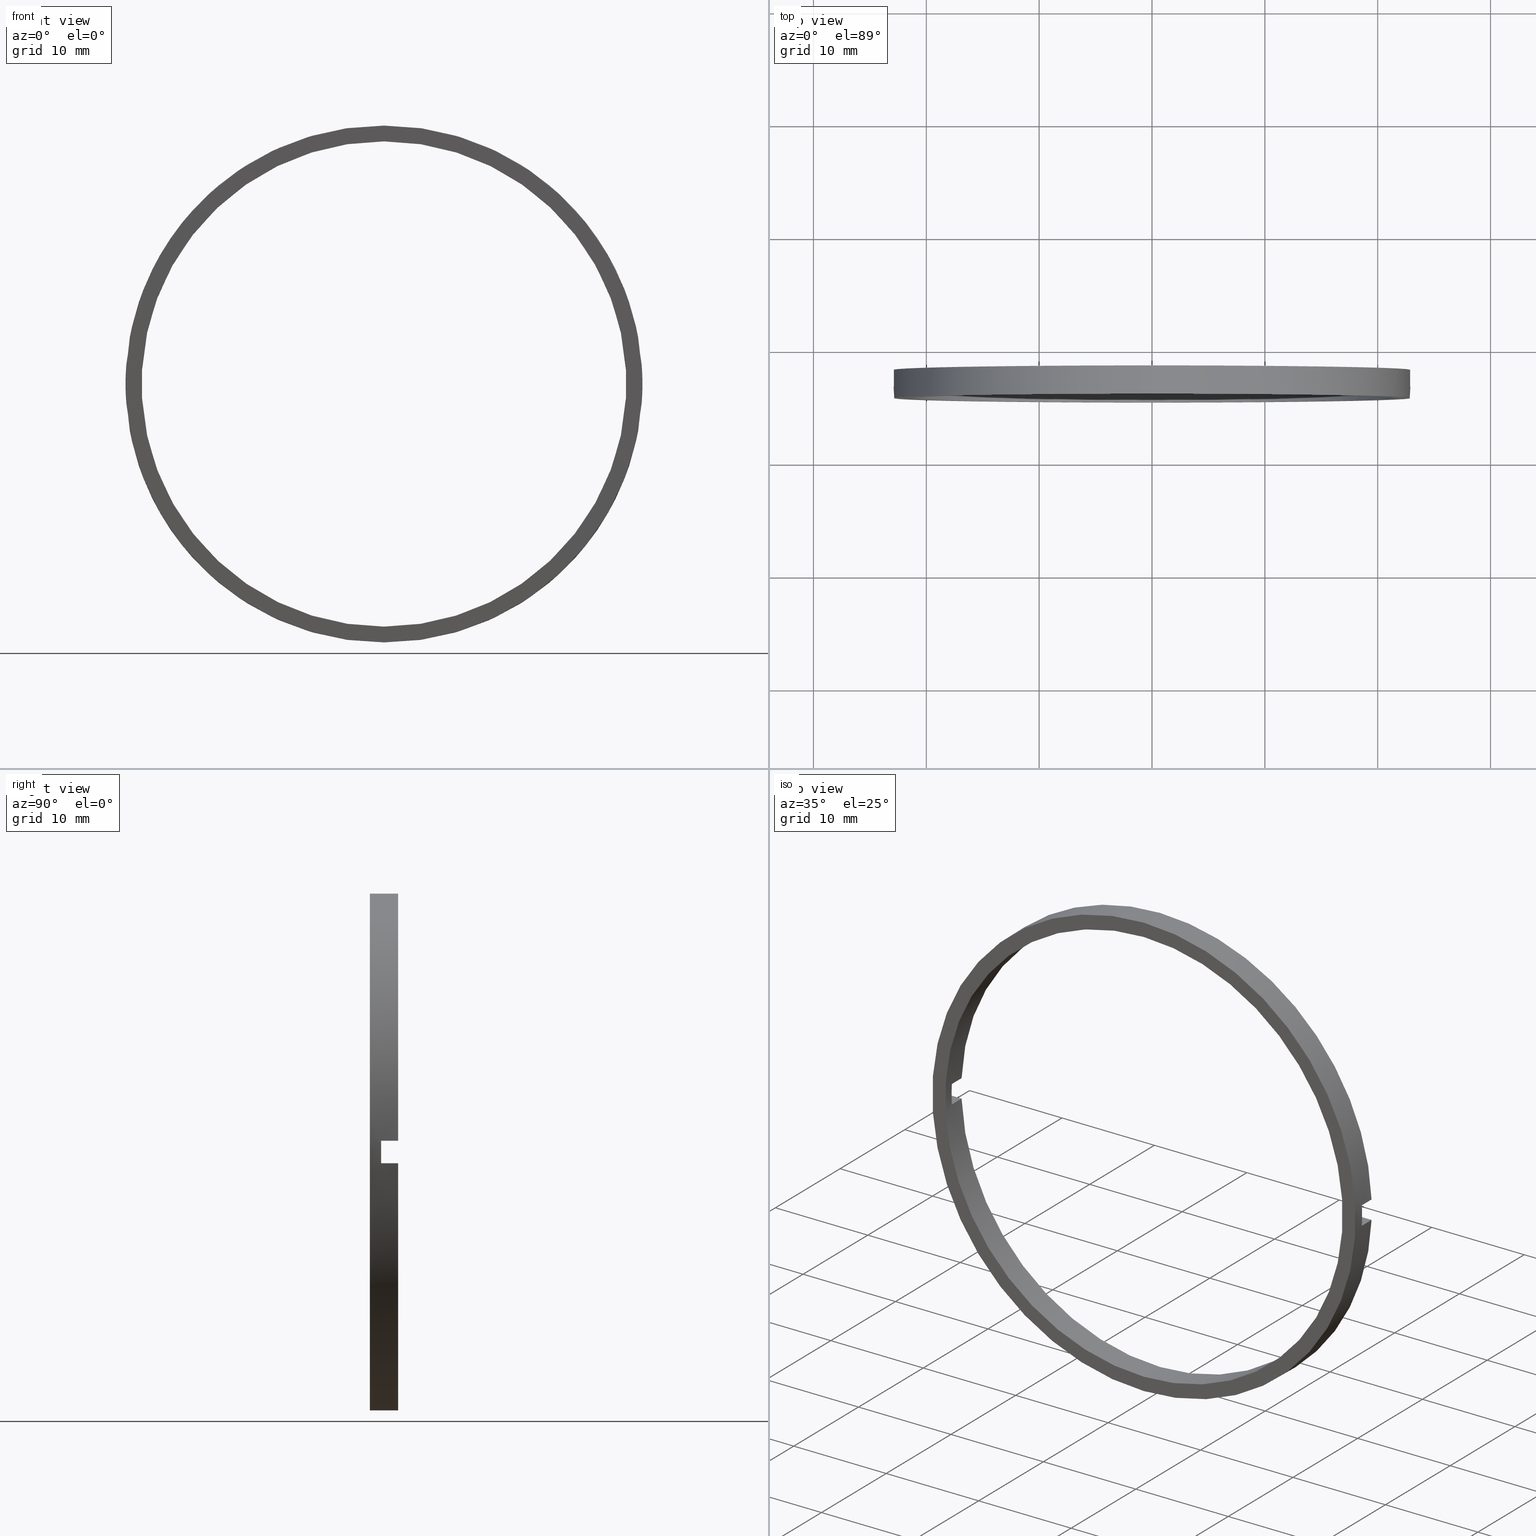
[diagram: canonical four-view strip — front | top / right | iso, engineering-drawing reading convention]
A machine part, canonical four-view strip (front | top / right | iso — engineering-drawing reading convention). The complete STEP part file that produces these views, byte-faithful:
ISO-10303-21;
HEADER;
FILE_DESCRIPTION (( 'STEP AP214' ),
    '1' );
FILE_NAME ('514002.STEP',
    '2019-09-18T02:29:02',
    ( '' ),
    ( '' ),
    'SwSTEP 2.0',
    'SolidWorks 2016',
    '' );
FILE_SCHEMA (( 'AUTOMOTIVE_DESIGN' ));
ENDSEC;

DATA;
#1 = DIRECTION ( 'NONE',  ( 0.0000000000000000000, 0.0000000000000000000, 1.000000000000000000 ) ) ;
#2 = EDGE_LOOP ( 'NONE', ( #66, #15 ) ) ;
#3 = ORIENTED_EDGE ( 'NONE', *, *, #143, .F. ) ;
#4 = EDGE_CURVE ( 'NONE', #167, #287, #423, .T. ) ;
#5 = DIRECTION ( 'NONE',  ( 0.0000000000000000000, 0.0000000000000000000, 1.000000000000000000 ) ) ;
#6 = CARTESIAN_POINT ( 'NONE',  ( -21.47673159491452900, -1.964249787179427100, 0.9999999999999995600 ) ) ;
#7 = CIRCLE ( 'NONE', #455, 21.50000000000000400 ) ;
#8 = CARTESIAN_POINT ( 'NONE',  ( 0.0000000000000000000, -3.464249787179430200, 0.0000000000000000000 ) ) ;
#9 = DIRECTION ( 'NONE',  ( 0.0000000000000000000, 0.0000000000000000000, 1.000000000000000000 ) ) ;
#10 = STYLED_ITEM ( 'NONE', ( #374 ), #333 ) ;
#11 = PLANE ( 'NONE',  #73 ) ;
#12 = CIRCLE ( 'NONE', #125, 22.90000000000000600 ) ;
#13 = EDGE_CURVE ( 'NONE', #28, #345, #375, .T. ) ;
#14 = ORIENTED_EDGE ( 'NONE', *, *, #183, .F. ) ;
#15 = ORIENTED_EDGE ( 'NONE', *, *, #205, .F. ) ;
#16 = CARTESIAN_POINT ( 'NONE',  ( 0.0000000000000000000, -1.964249787179427100, 0.0000000000000000000 ) ) ;
#17 = CARTESIAN_POINT ( 'NONE',  ( 22.87815552005886100, -1.964249787179430000, 1.000000000000000000 ) ) ;
#18 = LINE ( 'NONE', #67, #425 ) ;
#19 = VECTOR ( 'NONE', #210, 1000.000000000000000 ) ;
#20 = PLANE ( 'NONE',  #228 ) ;
#21 = VERTEX_POINT ( 'NONE', #386 ) ;
#22 = AXIS2_PLACEMENT_3D ( 'NONE', #202, #320, #395 ) ;
#23 = DIRECTION ( 'NONE',  ( 1.000000000000000000, 0.0000000000000000000, 0.0000000000000000000 ) ) ;
#24 = CARTESIAN_POINT ( 'NONE',  ( -22.87815552005887600, 56.26084262701361600, 1.000000000000000000 ) ) ;
#25 = DIRECTION ( 'NONE',  ( -0.0000000000000000000, 0.0000000000000000000, 1.000000000000000000 ) ) ;
#26 = VECTOR ( 'NONE', #261, 1000.000000000000000 ) ;
#27 = VERTEX_POINT ( 'NONE', #80 ) ;
#28 = VERTEX_POINT ( 'NONE', #117 ) ;
#29 = DIRECTION ( 'NONE',  ( 1.000000000000000000, 0.0000000000000000000, 0.0000000000000000000 ) ) ;
#30 = FACE_OUTER_BOUND ( 'NONE', #198, .T. ) ;
#31 = DIRECTION ( 'NONE',  ( 0.0000000000000000000, -1.000000000000000000, 0.0000000000000000000 ) ) ;
#32 = ORIENTED_EDGE ( 'NONE', *, *, #36, .T. ) ;
#33 = LINE ( 'NONE', #24, #172 ) ;
#34 = ORIENTED_EDGE ( 'NONE', *, *, #279, .T. ) ;
#35 = DIRECTION ( 'NONE',  ( 0.0000000000000000000, -0.0000000000000000000, -1.000000000000000000 ) ) ;
#36 = EDGE_CURVE ( 'NONE', #286, #49, #292, .T. ) ;
#37 = CARTESIAN_POINT ( 'NONE',  ( 21.50000000000000400, -1.964249787179430000, 0.0000000000000000000 ) ) ;
#38 = PRODUCT_DEFINITION_CONTEXT ( 'detailed design', #314, 'design' ) ;
#39 = CARTESIAN_POINT ( 'NONE',  ( -22.87815552005887200, -3.464249787179428400, 0.9999999999999995600 ) ) ;
#40 = UNCERTAINTY_MEASURE_WITH_UNIT (LENGTH_MEASURE( 1.000000000000000100E-005 ), #126, 'distance_accuracy_value', 'NONE');
#41 = LINE ( 'NONE', #300, #444 ) ;
#42 = CARTESIAN_POINT ( 'NONE',  ( 0.0000000000000000000, -4.464249787179428900, 0.0000000000000000000 ) ) ;
#43 = VECTOR ( 'NONE', #462, 1000.000000000000000 ) ;
#44 = CARTESIAN_POINT ( 'NONE',  ( 0.0000000000000000000, -4.464249787179428900, 0.0000000000000000000 ) ) ;
#45 = EDGE_CURVE ( 'NONE', #72, #199, #84, .T. ) ;
#46 = CARTESIAN_POINT ( 'NONE',  ( -22.87815552005887600, -1.964249787179430000, -1.000000000000000000 ) ) ;
#47 = EDGE_CURVE ( 'NONE', #167, #115, #265, .T. ) ;
#48 = LINE ( 'NONE', #238, #496 ) ;
#49 = VERTEX_POINT ( 'NONE', #351 ) ;
#50 = DIRECTION ( 'NONE',  ( 0.0000000000000000000, 0.0000000000000000000, 1.000000000000000000 ) ) ;
#51 = ORIENTED_EDGE ( 'NONE', *, *, #166, .T. ) ;
#52 = CARTESIAN_POINT ( 'NONE',  ( 21.50000000000000400, -1.964249787179430000, 0.0000000000000000000 ) ) ;
#53 = ADVANCED_FACE ( 'NONE', ( #153, #353 ), #354, .F. ) ;
#54 = AXIS2_PLACEMENT_3D ( 'NONE', #336, #408, #96 ) ;
#55 = CARTESIAN_POINT ( 'NONE',  ( 0.0000000000000000000, 56.26084262701361600, 0.0000000000000000000 ) ) ;
#56 = VECTOR ( 'NONE', #23, 1000.000000000000000 ) ;
#57 = EDGE_CURVE ( 'NONE', #199, #321, #48, .T. ) ;
#58 = ORIENTED_EDGE ( 'NONE', *, *, #13, .F. ) ;
#59 = DIRECTION ( 'NONE',  ( 1.000000000000000000, 0.0000000000000000000, 0.0000000000000000000 ) ) ;
#60 = ADVANCED_FACE ( 'NONE', ( #251 ), #174, .T. ) ;
#61 =( LENGTH_UNIT ( ) NAMED_UNIT ( * ) SI_UNIT ( .MILLI., .METRE. ) );
#62 = LINE ( 'NONE', #483, #299 ) ;
#63 = CARTESIAN_POINT ( 'NONE',  ( -26.85254027261461800, -3.464249787179430200, -1.000000000000000000 ) ) ;
#64 = ORIENTED_EDGE ( 'NONE', *, *, #232, .F. ) ;
#65 = AXIS2_PLACEMENT_3D ( 'NONE', #151, #193, #233 ) ;
#66 = ORIENTED_EDGE ( 'NONE', *, *, #74, .F. ) ;
#67 = CARTESIAN_POINT ( 'NONE',  ( -26.85254027261461800, -3.464249787179430200, -1.000000000000000000 ) ) ;
#68 = UNCERTAINTY_MEASURE_WITH_UNIT (LENGTH_MEASURE( 1.000000000000000100E-005 ), #61, 'distance_accuracy_value', 'NONE');
#69 = EDGE_CURVE ( 'NONE', #322, #49, #270, .T. ) ;
#70 = APPLICATION_PROTOCOL_DEFINITION ( 'draft international standard', 'automotive_design', 1998, #314 ) ;
#71 = VECTOR ( 'NONE', #146, 1000.000000000000000 ) ;
#72 = VERTEX_POINT ( 'NONE', #358 ) ;
#73 = AXIS2_PLACEMENT_3D ( 'NONE', #52, #142, #257 ) ;
#74 = EDGE_CURVE ( 'NONE', #78, #28, #195, .T. ) ;
#75 = DIRECTION ( 'NONE',  ( -0.0000000000000000000, 1.000000000000000000, -0.0000000000000000000 ) ) ;
#76 = COLOUR_RGB ( '',1.000000000000000000, 1.000000000000000000, 1.000000000000000000 ) ;
#77 = CARTESIAN_POINT ( 'NONE',  ( 0.0000000000000000000, -3.464249787179428400, 0.0000000000000000000 ) ) ;
#78 = VERTEX_POINT ( 'NONE', #390 ) ;
#79 = EDGE_CURVE ( 'NONE', #286, #388, #393, .T. ) ;
#80 = CARTESIAN_POINT ( 'NONE',  ( 21.47673159491452900, -3.464249787179428400, -0.9999999999999995600 ) ) ;
#81 = CARTESIAN_POINT ( 'NONE',  ( 0.0000000000000000000, -1.964249787179427100, 0.0000000000000000000 ) ) ;
#82 =( NAMED_UNIT ( * ) PLANE_ANGLE_UNIT ( ) SI_UNIT ( $, .RADIAN. ) );
#83 = CIRCLE ( 'NONE', #348, 22.90000000000000600 ) ;
#84 = LINE ( 'NONE', #319, #93 ) ;
#85 = EDGE_LOOP ( 'NONE', ( #260, #266 ) ) ;
#86 = DIRECTION ( 'NONE',  ( 0.0000000000000000000, -1.000000000000000000, 0.0000000000000000000 ) ) ;
#87 = PRESENTATION_LAYER_ASSIGNMENT (  '', '', ( #267 ) ) ;
#88 =( NAMED_UNIT ( * ) SI_UNIT ( $, .STERADIAN. ) SOLID_ANGLE_UNIT ( ) );
#89 = ORIENTED_EDGE ( 'NONE', *, *, #4, .T. ) ;
#90 = CARTESIAN_POINT ( 'NONE',  ( -26.85254027261461800, -1.964249787179430000, 1.000000000000000000 ) ) ;
#91 = STYLED_ITEM ( 'NONE', ( #303 ), #288 ) ;
#92 = DIRECTION ( 'NONE',  ( 1.000000000000000000, 0.0000000000000000000, 0.0000000000000000000 ) ) ;
#93 = VECTOR ( 'NONE', #274, 1000.000000000000000 ) ;
#94 = CARTESIAN_POINT ( 'NONE',  ( 0.0000000000000000000, -4.464249787179428900, 0.0000000000000000000 ) ) ;
#95 = ORIENTED_EDGE ( 'NONE', *, *, #239, .T. ) ;
#96 = DIRECTION ( 'NONE',  ( 0.0000000000000000000, 0.0000000000000000000, 1.000000000000000000 ) ) ;
#97 = DIRECTION ( 'NONE',  ( -1.000000000000000000, 0.0000000000000000000, -0.0000000000000000000 ) ) ;
#98 = LINE ( 'NONE', #90, #108 ) ;
#99 = EDGE_CURVE ( 'NONE', #78, #230, #349, .T. ) ;
#100 = ADVANCED_FACE ( 'NONE', ( #246 ), #363, .F. ) ;
#101 = COLOUR_RGB ( '',1.000000000000000000, 1.000000000000000000, 1.000000000000000000 ) ;
#102 = ORIENTED_EDGE ( 'NONE', *, *, #370, .T. ) ;
#103 = EDGE_LOOP ( 'NONE', ( #178, #440, #327, #187 ) ) ;
#104 =( NAMED_UNIT ( * ) SI_UNIT ( $, .STERADIAN. ) SOLID_ANGLE_UNIT ( ) );
#105 = EDGE_CURVE ( 'NONE', #180, #206, #445, .T. ) ;
#106 = APPLICATION_CONTEXT ( 'automotive_design' ) ;
#107 = CARTESIAN_POINT ( 'NONE',  ( -26.85254027261461800, -3.464249787179430200, -1.000000000000000000 ) ) ;
#108 = VECTOR ( 'NONE', #92, 1000.000000000000000 ) ;
#109 = FILL_AREA_STYLE ('',( #268 ) ) ;
#110 = PRESENTATION_LAYER_ASSIGNMENT (  '', '', ( #493 ) ) ;
#111 = ORIENTED_EDGE ( 'NONE', *, *, #122, .F. ) ;
#112 = CARTESIAN_POINT ( 'NONE',  ( -26.85254027261461800, -3.464249787179430200, -1.000000000000000000 ) ) ;
#113 = MECHANICAL_DESIGN_GEOMETRIC_PRESENTATION_REPRESENTATION (  '', ( #267 ), #222 ) ;
#114 = CARTESIAN_POINT ( 'NONE',  ( 0.0000000000000000000, -1.964249787179427100, 21.50000000000000400 ) ) ;
#115 = VERTEX_POINT ( 'NONE', #39 ) ;
#116 = PRESENTATION_LAYER_ASSIGNMENT (  '', '', ( #91 ) ) ;
#117 = CARTESIAN_POINT ( 'NONE',  ( 2.804441170047439800E-015, -4.464249787179428900, -22.90000000000000600 ) ) ;
#118 = FACE_OUTER_BOUND ( 'NONE', #191, .T. ) ;
#119 = DIRECTION ( 'NONE',  ( 0.0000000000000000000, 0.0000000000000000000, 1.000000000000000000 ) ) ;
#120 = ORIENTED_EDGE ( 'NONE', *, *, #474, .T. ) ;
#121 = ORIENTED_EDGE ( 'NONE', *, *, #47, .T. ) ;
#122 = EDGE_CURVE ( 'NONE', #231, #72, #501, .T. ) ;
#123 = UNCERTAINTY_MEASURE_WITH_UNIT (LENGTH_MEASURE( 1.000000000000000100E-005 ), #381, 'distance_accuracy_value', 'NONE');
#124 = DIRECTION ( 'NONE',  ( 0.0000000000000000000, 0.0000000000000000000, 1.000000000000000000 ) ) ;
#125 = AXIS2_PLACEMENT_3D ( 'NONE', #182, #218, #255 ) ;
#126 =( LENGTH_UNIT ( ) NAMED_UNIT ( * ) SI_UNIT ( .MILLI., .METRE. ) );
#127 = FACE_OUTER_BOUND ( 'NONE', #103, .T. ) ;
#128 = PRESENTATION_STYLE_ASSIGNMENT (( #325 ) ) ;
#129 = ORIENTED_EDGE ( 'NONE', *, *, #143, .T. ) ;
#130 = DIRECTION ( 'NONE',  ( -0.0000000000000000000, 1.000000000000000000, -0.0000000000000000000 ) ) ;
#131 = AXIS2_PLACEMENT_3D ( 'NONE', #44, #203, #1 ) ;
#132 = CARTESIAN_POINT ( 'NONE',  ( 22.87815552005887200, -3.464249787179428400, 0.9999999999999995600 ) ) ;
#133 = DIRECTION ( 'NONE',  ( 0.0000000000000000000, -0.0000000000000000000, 1.000000000000000000 ) ) ;
#134 = EDGE_CURVE ( 'NONE', #388, #286, #145, .T. ) ;
#135 = CARTESIAN_POINT ( 'NONE',  ( -21.47673159491452900, -3.464249787179428400, 0.9999999999999995600 ) ) ;
#136 = FACE_OUTER_BOUND ( 'NONE', #466, .T. ) ;
#137 = ORIENTED_EDGE ( 'NONE', *, *, #430, .T. ) ;
#138 = ORIENTED_EDGE ( 'NONE', *, *, #47, .F. ) ;
#139 = DIRECTION ( 'NONE',  ( 0.0000000000000000000, -1.000000000000000000, 0.0000000000000000000 ) ) ;
#140 = PRODUCT_DEFINITION_FORMATION_WITH_SPECIFIED_SOURCE ( '�κ�', '', #237, .NOT_KNOWN. ) ;
#141 = CARTESIAN_POINT ( 'NONE',  ( 0.0000000000000000000, 56.26084262701361600, 0.0000000000000000000 ) ) ;
#142 = DIRECTION ( 'NONE',  ( 0.0000000000000000000, -1.000000000000000000, 0.0000000000000000000 ) ) ;
#143 = EDGE_CURVE ( 'NONE', #49, #439, #7, .T. ) ;
#144 = FACE_OUTER_BOUND ( 'NONE', #301, .T. ) ;
#145 = CIRCLE ( 'NONE', #22, 21.50000000000000400 ) ;
#146 = DIRECTION ( 'NONE',  ( -0.0000000000000000000, 1.000000000000000000, -0.0000000000000000000 ) ) ;
#147 = ORIENTED_EDGE ( 'NONE', *, *, #383, .F. ) ;
#148 = ADVANCED_FACE ( 'NONE', ( #412 ), #173, .T. ) ;
#149 = DIRECTION ( 'NONE',  ( -0.0000000000000000000, 1.000000000000000000, -0.0000000000000000000 ) ) ;
#150 = CARTESIAN_POINT ( 'NONE',  ( 0.0000000000000000000, -4.464249787179428900, 21.50000000000000400 ) ) ;
#151 = CARTESIAN_POINT ( 'NONE',  ( 0.0000000000000000000, -3.464249787179428400, 0.0000000000000000000 ) ) ;
#152 =( GEOMETRIC_REPRESENTATION_CONTEXT ( 3 ) GLOBAL_UNCERTAINTY_ASSIGNED_CONTEXT ( ( #123 ) ) GLOBAL_UNIT_ASSIGNED_CONTEXT ( ( #381, #452, #156 ) ) REPRESENTATION_CONTEXT ( 'NONE', 'WORKASPACE' ) );
#153 = FACE_OUTER_BOUND ( 'NONE', #2, .T. ) ;
#154 = ORIENTED_EDGE ( 'NONE', *, *, #13, .T. ) ;
#155 = ORIENTED_EDGE ( 'NONE', *, *, #334, .T. ) ;
#156 =( NAMED_UNIT ( * ) SI_UNIT ( $, .STERADIAN. ) SOLID_ANGLE_UNIT ( ) );
#157 = EDGE_CURVE ( 'NONE', #439, #287, #464, .T. ) ;
#158 = PLANE ( 'NONE',  #306 ) ;
#159 = DIRECTION ( 'NONE',  ( -1.000000000000000000, 0.0000000000000000000, -0.0000000000000000000 ) ) ;
#160 = DIRECTION ( 'NONE',  ( -0.0000000000000000000, 1.000000000000000000, -0.0000000000000000000 ) ) ;
#161 = SURFACE_STYLE_FILL_AREA ( #221 ) ;
#162 = PRODUCT_DEFINITION ( 'δ֪', '', #140, #38 ) ;
#163 = DIRECTION ( 'NONE',  ( 0.0000000000000000000, 0.0000000000000000000, 1.000000000000000000 ) ) ;
#164 = VERTEX_POINT ( 'NONE', #6 ) ;
#165 = SURFACE_STYLE_FILL_AREA ( #283 ) ;
#166 = EDGE_CURVE ( 'NONE', #406, #230, #186, .T. ) ;
#167 = VERTEX_POINT ( 'NONE', #248 ) ;
#168 = ORIENTED_EDGE ( 'NONE', *, *, #290, .T. ) ;
#169 = DIRECTION ( 'NONE',  ( -0.0000000000000000000, 1.000000000000000000, -0.0000000000000000000 ) ) ;
#170 = MANIFOLD_SOLID_BREP ( '�г�-����1', #478 ) ;
#171 = CARTESIAN_POINT ( 'NONE',  ( 0.0000000000000000000, 56.26084262701361600, 22.90000000000000600 ) ) ;
#172 = VECTOR ( 'NONE', #335, 1000.000000000000000 ) ;
#173 = PLANE ( 'NONE',  #201 ) ;
#174 = CYLINDRICAL_SURFACE ( 'NONE', #396, 22.90000000000000600 ) ;
#175 = ORIENTED_EDGE ( 'NONE', *, *, #360, .T. ) ;
#176 = CARTESIAN_POINT ( 'NONE',  ( -26.85254027261461800, -1.964249787179430000, -1.000000000000000000 ) ) ;
#177 = DIRECTION ( 'NONE',  ( -1.000000000000000000, -0.0000000000000000000, -0.0000000000000000000 ) ) ;
#178 = ORIENTED_EDGE ( 'NONE', *, *, #456, .F. ) ;
#179 = CARTESIAN_POINT ( 'NONE',  ( -26.85254027261461800, -1.964249787179430000, 1.000000000000000000 ) ) ;
#180 = VERTEX_POINT ( 'NONE', #135 ) ;
#181 = SURFACE_STYLE_USAGE ( .BOTH. , #479 ) ;
#182 = CARTESIAN_POINT ( 'NONE',  ( 0.0000000000000000000, -3.464249787179428400, 0.0000000000000000000 ) ) ;
#183 = EDGE_CURVE ( 'NONE', #252, #322, #62, .T. ) ;
#184 = CARTESIAN_POINT ( 'NONE',  ( -26.85254027261461800, -3.464249787179430200, 1.000000000000000000 ) ) ;
#185 = CYLINDRICAL_SURFACE ( 'NONE', #323, 21.50000000000000400 ) ;
#186 = CIRCLE ( 'NONE', #285, 22.90000000000000600 ) ;
#187 = ORIENTED_EDGE ( 'NONE', *, *, #4, .F. ) ;
#188 = CARTESIAN_POINT ( 'NONE',  ( -22.87815552005887600, -1.964249787179430000, 1.000000000000000000 ) ) ;
#189 = DIRECTION ( 'NONE',  ( 0.0000000000000000000, 0.0000000000000000000, -1.000000000000000000 ) ) ;
#190 = CARTESIAN_POINT ( 'NONE',  ( -26.85254027261461800, -3.464249787179430200, 1.000000000000000000 ) ) ;
#191 = EDGE_LOOP ( 'NONE', ( #385, #428, #137, #95, #213, #214, #344, #275 ) ) ;
#192 = CARTESIAN_POINT ( 'NONE',  ( -21.47673159491452900, -1.964249787179427100, -0.9999999999999995600 ) ) ;
#193 = DIRECTION ( 'NONE',  ( -0.0000000000000000000, -1.000000000000000000, -0.0000000000000000000 ) ) ;
#194 = AXIS2_PLACEMENT_3D ( 'NONE', #141, #264, #259 ) ;
#195 = CIRCLE ( 'NONE', #422, 22.90000000000000600 ) ;
#196 = EDGE_CURVE ( 'NONE', #252, #21, #438, .T. ) ;
#197 = DIRECTION ( 'NONE',  ( 0.0000000000000000000, 1.000000000000000000, 0.0000000000000000000 ) ) ;
#198 = EDGE_LOOP ( 'NONE', ( #121, #453, #294, #350 ) ) ;
#199 = VERTEX_POINT ( 'NONE', #132 ) ;
#200 = CARTESIAN_POINT ( 'NONE',  ( 2.632990618166810000E-015, 56.26084262701361600, -21.50000000000000400 ) ) ;
#201 = AXIS2_PLACEMENT_3D ( 'NONE', #209, #324, #362 ) ;
#202 = CARTESIAN_POINT ( 'NONE',  ( 0.0000000000000000000, -4.464249787179428900, 0.0000000000000000000 ) ) ;
#203 = DIRECTION ( 'NONE',  ( -0.0000000000000000000, 1.000000000000000000, -0.0000000000000000000 ) ) ;
#204 = COLOUR_RGB ( '',1.000000000000000000, 1.000000000000000000, 1.000000000000000000 ) ;
#205 = EDGE_CURVE ( 'NONE', #28, #78, #330, .T. ) ;
#206 = VERTEX_POINT ( 'NONE', #254 ) ;
#207 = ORIENTED_EDGE ( 'NONE', *, *, #360, .F. ) ;
#208 = CARTESIAN_POINT ( 'NONE',  ( 21.47673159491453300, 56.26084262701361600, 1.000000000000000000 ) ) ;
#209 = CARTESIAN_POINT ( 'NONE',  ( 0.0000000000000000000, -3.464249787179430200, 0.0000000000000000000 ) ) ;
#210 = DIRECTION ( 'NONE',  ( -1.000000000000000000, -0.0000000000000000000, -0.0000000000000000000 ) ) ;
#211 = CIRCLE ( 'NONE', #482, 21.50000000000000400 ) ;
#212 = CARTESIAN_POINT ( 'NONE',  ( 0.0000000000000000000, -1.964249787179427100, 22.90000000000000600 ) ) ;
#213 = ORIENTED_EDGE ( 'NONE', *, *, #122, .T. ) ;
#214 = ORIENTED_EDGE ( 'NONE', *, *, #474, .F. ) ;
#215 = CARTESIAN_POINT ( 'NONE',  ( 21.47673159491452900, -1.964249787179427100, 0.9999999999999995600 ) ) ;
#216 = EDGE_CURVE ( 'NONE', #230, #321, #484, .T. ) ;
#217 = DIRECTION ( 'NONE',  ( 0.0000000000000000000, 0.0000000000000000000, 1.000000000000000000 ) ) ;
#218 = DIRECTION ( 'NONE',  ( 0.0000000000000000000, 1.000000000000000000, 0.0000000000000000000 ) ) ;
#219 = ORIENTED_EDGE ( 'NONE', *, *, #409, .T. ) ;
#220 = CARTESIAN_POINT ( 'NONE',  ( 0.0000000000000000000, 56.26084262701361600, 0.0000000000000000000 ) ) ;
#221 = FILL_AREA_STYLE ('',( #486 ) ) ;
#222 =( GEOMETRIC_REPRESENTATION_CONTEXT ( 3 ) GLOBAL_UNCERTAINTY_ASSIGNED_CONTEXT ( ( #40 ) ) GLOBAL_UNIT_ASSIGNED_CONTEXT ( ( #126, #82, #424 ) ) REPRESENTATION_CONTEXT ( 'NONE', 'WORKASPACE' ) );
#223 = ADVANCED_FACE ( 'NONE', ( #30 ), #400, .T. ) ;
#224 = VECTOR ( 'NONE', #420, 1000.000000000000000 ) ;
#225 = ORIENTED_EDGE ( 'NONE', *, *, #45, .F. ) ;
#226 = SURFACE_SIDE_STYLE ('',( #161 ) ) ;
#227 = CARTESIAN_POINT ( 'NONE',  ( 0.0000000000000000000, 0.0000000000000000000, 0.0000000000000000000 ) ) ;
#228 = AXIS2_PLACEMENT_3D ( 'NONE', #184, #490, #59 ) ;
#229 = VECTOR ( 'NONE', #139, 1000.000000000000000 ) ;
#230 = VERTEX_POINT ( 'NONE', #212 ) ;
#231 = VERTEX_POINT ( 'NONE', #215 ) ;
#232 = EDGE_CURVE ( 'NONE', #252, #345, #506, .T. ) ;
#233 = DIRECTION ( 'NONE',  ( -1.154631945610162800E-014, 0.0000000000000000000, 1.000000000000000000 ) ) ;
#234 = DIRECTION ( 'NONE',  ( 0.0000000000000000000, 0.0000000000000000000, -1.000000000000000000 ) ) ;
#235 = EDGE_LOOP ( 'NONE', ( #51, #331, #276, #487, #207, #451 ) ) ;
#236 = CARTESIAN_POINT ( 'NONE',  ( 2.804441170047439800E-015, 56.26084262701361600, -22.90000000000000600 ) ) ;
#237 = PRODUCT ( '514002', '514002', '', ( #498 ) ) ;
#238 = CARTESIAN_POINT ( 'NONE',  ( 22.87815552005887600, 56.26084262701361600, 1.000000000000000000 ) ) ;
#239 = EDGE_CURVE ( 'NONE', #491, #231, #211, .T. ) ;
#240 = ORIENTED_EDGE ( 'NONE', *, *, #196, .T. ) ;
#241 = ORIENTED_EDGE ( 'NONE', *, *, #290, .F. ) ;
#242 = DIRECTION ( 'NONE',  ( 0.0000000000000000000, 0.0000000000000000000, 1.000000000000000000 ) ) ;
#243 = DIRECTION ( 'NONE',  ( -0.0000000000000000000, 1.000000000000000000, -0.0000000000000000000 ) ) ;
#244 = DIRECTION ( 'NONE',  ( -0.0000000000000000000, 1.000000000000000000, -0.0000000000000000000 ) ) ;
#245 = FACE_OUTER_BOUND ( 'NONE', #401, .T. ) ;
#246 = FACE_OUTER_BOUND ( 'NONE', #235, .T. ) ;
#247 = ORIENTED_EDGE ( 'NONE', *, *, #79, .F. ) ;
#248 = CARTESIAN_POINT ( 'NONE',  ( -22.87815552005887200, -3.464249787179428400, -0.9999999999999995600 ) ) ;
#249 = CARTESIAN_POINT ( 'NONE',  ( 0.0000000000000000000, -1.964249787179427100, 0.0000000000000000000 ) ) ;
#250 = DIRECTION ( 'NONE',  ( 0.0000000000000000000, 0.0000000000000000000, 1.000000000000000000 ) ) ;
#251 = FACE_OUTER_BOUND ( 'NONE', #355, .T. ) ;
#252 = VERTEX_POINT ( 'NONE', #284 ) ;
#253 = EDGE_LOOP ( 'NONE', ( #247, #32, #129, #219, #332, #102, #175, #477 ) ) ;
#254 = CARTESIAN_POINT ( 'NONE',  ( -21.47673159491452900, -3.464249787179428400, -0.9999999999999995600 ) ) ;
#255 = DIRECTION ( 'NONE',  ( 0.0000000000000000000, 0.0000000000000000000, 1.000000000000000000 ) ) ;
#256 = EDGE_CURVE ( 'NONE', #406, #164, #98, .T. ) ;
#257 = DIRECTION ( 'NONE',  ( 0.0000000000000000000, -0.0000000000000000000, -1.000000000000000000 ) ) ;
#258 = SURFACE_STYLE_FILL_AREA ( #109 ) ;
#259 = DIRECTION ( 'NONE',  ( 0.0000000000000000000, 0.0000000000000000000, 1.000000000000000000 ) ) ;
#260 = ORIENTED_EDGE ( 'NONE', *, *, #134, .T. ) ;
#261 = DIRECTION ( 'NONE',  ( -0.0000000000000000000, 1.000000000000000000, -0.0000000000000000000 ) ) ;
#262 = PLANE ( 'NONE',  #414 ) ;
#263 = AXIS2_PLACEMENT_3D ( 'NONE', #249, #435, #50 ) ;
#264 = DIRECTION ( 'NONE',  ( -0.0000000000000000000, 1.000000000000000000, -0.0000000000000000000 ) ) ;
#265 = CIRCLE ( 'NONE', #488, 22.90000000000000600 ) ;
#266 = ORIENTED_EDGE ( 'NONE', *, *, #79, .T. ) ;
#267 = STYLED_ITEM ( 'NONE', ( #128 ), #60 ) ;
#268 = FILL_AREA_STYLE_COLOUR ( '', #76 ) ;
#269 = FACE_OUTER_BOUND ( 'NONE', #309, .T. ) ;
#270 = CIRCLE ( 'NONE', #272, 21.50000000000000400 ) ;
#271 = ORIENTED_EDGE ( 'NONE', *, *, #311, .F. ) ;
#272 = AXIS2_PLACEMENT_3D ( 'NONE', #392, #431, #119 ) ;
#273 = CARTESIAN_POINT ( 'NONE',  ( -22.87815552005887600, 56.26084262701361600, -1.000000000000000000 ) ) ;
#274 = DIRECTION ( 'NONE',  ( 1.000000000000000000, 0.0000000000000000000, 0.0000000000000000000 ) ) ;
#275 = ORIENTED_EDGE ( 'NONE', *, *, #69, .T. ) ;
#276 = ORIENTED_EDGE ( 'NONE', *, *, #279, .F. ) ;
#277 = DIRECTION ( 'NONE',  ( -0.0000000000000000000, 1.000000000000000000, -0.0000000000000000000 ) ) ;
#278 = DIRECTION ( 'NONE',  ( -0.0000000000000000000, -1.000000000000000000, -0.0000000000000000000 ) ) ;
#279 = EDGE_CURVE ( 'NONE', #231, #321, #308, .T. ) ;
#280 = FACE_OUTER_BOUND ( 'NONE', #253, .T. ) ;
#281 = VECTOR ( 'NONE', #469, 1000.000000000000000 ) ;
#282 = ORIENTED_EDGE ( 'NONE', *, *, #205, .T. ) ;
#283 = FILL_AREA_STYLE ('',( #473 ) ) ;
#284 = CARTESIAN_POINT ( 'NONE',  ( 22.87815552005886100, -1.964249787179430000, -1.000000000000000000 ) ) ;
#285 = AXIS2_PLACEMENT_3D ( 'NONE', #16, #130, #291 ) ;
#286 = VERTEX_POINT ( 'NONE', #404 ) ;
#287 = VERTEX_POINT ( 'NONE', #46 ) ;
#288 = ADVANCED_BREP_SHAPE_REPRESENTATION ( '514002', ( #170, #357 ), #394 ) ;
#289 = CARTESIAN_POINT ( 'NONE',  ( 22.87815552005887600, 56.26084262701361600, -1.000000000000000000 ) ) ;
#290 = EDGE_CURVE ( 'NONE', #199, #21, #12, .T. ) ;
#291 = DIRECTION ( 'NONE',  ( 0.0000000000000000000, 0.0000000000000000000, 1.000000000000000000 ) ) ;
#292 = LINE ( 'NONE', #200, #476 ) ;
#293 = MECHANICAL_DESIGN_GEOMETRIC_PRESENTATION_REPRESENTATION (  '', ( #91 ), #152 ) ;
#294 = ORIENTED_EDGE ( 'NONE', *, *, #105, .T. ) ;
#295 = CARTESIAN_POINT ( 'NONE',  ( 21.47673159491452900, -1.964249787179427100, -0.9999999999999995600 ) ) ;
#296 = ADVANCED_FACE ( 'NONE', ( #144 ), #11, .F. ) ;
#297 = AXIS2_PLACEMENT_3D ( 'NONE', #316, #352, #163 ) ;
#298 = ADVANCED_FACE ( 'NONE', ( #118 ), #405, .F. ) ;
#299 = VECTOR ( 'NONE', #177, 1000.000000000000000 ) ;
#300 = CARTESIAN_POINT ( 'NONE',  ( 0.0000000000000000000, 56.26084262701361600, 21.50000000000000400 ) ) ;
#301 = EDGE_LOOP ( 'NONE', ( #384, #369, #387, #3, #379, #14 ) ) ;
#302 = ORIENTED_EDGE ( 'NONE', *, *, #343, .F. ) ;
#303 = PRESENTATION_STYLE_ASSIGNMENT (( #415 ) ) ;
#304 = CARTESIAN_POINT ( 'NONE',  ( 2.804441170047439800E-015, -1.964249787179427100, -22.90000000000000600 ) ) ;
#305 = DIRECTION ( 'NONE',  ( 1.000000000000000000, 0.0000000000000000000, 0.0000000000000000000 ) ) ;
#306 = AXIS2_PLACEMENT_3D ( 'NONE', #494, #25, #305 ) ;
#307 = APPLICATION_PROTOCOL_DEFINITION ( 'draft international standard', 'automotive_design', 1998, #106 ) ;
#308 = LINE ( 'NONE', #179, #398 ) ;
#309 = EDGE_LOOP ( 'NONE', ( #225, #111, #34, #368 ) ) ;
#310 = ORIENTED_EDGE ( 'NONE', *, *, #57, .T. ) ;
#311 = EDGE_CURVE ( 'NONE', #27, #322, #411, .T. ) ;
#312 =( NAMED_UNIT ( * ) SI_UNIT ( $, .STERADIAN. ) SOLID_ANGLE_UNIT ( ) );
#313 = PRODUCT_DEFINITION_SHAPE ( 'NONE', 'NONE',  #162 ) ;
#314 = APPLICATION_CONTEXT ( 'automotive_design' ) ;
#315 = LINE ( 'NONE', #339, #71 ) ;
#316 = CARTESIAN_POINT ( 'NONE',  ( 21.50000000000000400, -4.464249787179428900, 0.0000000000000000000 ) ) ;
#317 = ORIENTED_EDGE ( 'NONE', *, *, #334, .F. ) ;
#318 = CARTESIAN_POINT ( 'NONE',  ( 0.0000000000000000000, 56.26084262701361600, 0.0000000000000000000 ) ) ;
#319 = CARTESIAN_POINT ( 'NONE',  ( -26.85254027261461800, -3.464249787179430200, 1.000000000000000000 ) ) ;
#320 = DIRECTION ( 'NONE',  ( -0.0000000000000000000, 1.000000000000000000, -0.0000000000000000000 ) ) ;
#321 = VERTEX_POINT ( 'NONE', #17 ) ;
#322 = VERTEX_POINT ( 'NONE', #295 ) ;
#323 = AXIS2_PLACEMENT_3D ( 'NONE', #55, #149, #413 ) ;
#324 = DIRECTION ( 'NONE',  ( 0.0000000000000000000, 1.000000000000000000, 0.0000000000000000000 ) ) ;
#325 = SURFACE_STYLE_USAGE ( .BOTH. , #468 ) ;
#326 = COLOUR_RGB ( '',1.000000000000000000, 1.000000000000000000, 1.000000000000000000 ) ;
#327 = ORIENTED_EDGE ( 'NONE', *, *, #157, .T. ) ;
#328 = CARTESIAN_POINT ( 'NONE',  ( 0.0000000000000000000, -1.964249787179427100, 0.0000000000000000000 ) ) ;
#329 = DIRECTION ( 'NONE',  ( -0.0000000000000000000, 1.000000000000000000, -0.0000000000000000000 ) ) ;
#330 = CIRCLE ( 'NONE', #436, 22.90000000000000600 ) ;
#331 = ORIENTED_EDGE ( 'NONE', *, *, #216, .T. ) ;
#332 = ORIENTED_EDGE ( 'NONE', *, *, #105, .F. ) ;
#333 = ADVANCED_FACE ( 'NONE', ( #470 ), #500, .T. ) ;
#334 = EDGE_CURVE ( 'NONE', #406, #115, #33, .T. ) ;
#335 = DIRECTION ( 'NONE',  ( 0.0000000000000000000, -1.000000000000000000, 0.0000000000000000000 ) ) ;
#336 = CARTESIAN_POINT ( 'NONE',  ( 0.0000000000000000000, -1.964249787179427100, 0.0000000000000000000 ) ) ;
#337 = VECTOR ( 'NONE', #460, 1000.000000000000000 ) ;
#338 = ORIENTED_EDGE ( 'NONE', *, *, #74, .T. ) ;
#339 = CARTESIAN_POINT ( 'NONE',  ( -21.47673159491453300, 56.26084262701361600, 1.000000000000000000 ) ) ;
#340 = DIRECTION ( 'NONE',  ( -0.0000000000000000000, 1.000000000000000000, -0.0000000000000000000 ) ) ;
#341 = AXIS2_PLACEMENT_3D ( 'NONE', #328, #402, #217 ) ;
#342 = LINE ( 'NONE', #107, #337 ) ;
#343 = EDGE_CURVE ( 'NONE', #345, #287, #83, .T. ) ;
#344 = ORIENTED_EDGE ( 'NONE', *, *, #311, .T. ) ;
#345 = VERTEX_POINT ( 'NONE', #304 ) ;
#346 = SURFACE_SIDE_STYLE ('',( #258 ) ) ;
#347 =( LENGTH_UNIT ( ) NAMED_UNIT ( * ) SI_UNIT ( .MILLI., .METRE. ) );
#348 = AXIS2_PLACEMENT_3D ( 'NONE', #446, #489, #450 ) ;
#349 = LINE ( 'NONE', #171, #433 ) ;
#350 = ORIENTED_EDGE ( 'NONE', *, *, #456, .T. ) ;
#351 = CARTESIAN_POINT ( 'NONE',  ( 2.632990618166810000E-015, -1.964249787179427100, -21.50000000000000400 ) ) ;
#352 = DIRECTION ( 'NONE',  ( -0.0000000000000000000, 1.000000000000000000, 0.0000000000000000000 ) ) ;
#353 = FACE_BOUND ( 'NONE', #85, .T. ) ;
#354 = PLANE ( 'NONE',  #297 ) ;
#355 = EDGE_LOOP ( 'NONE', ( #338, #154, #64, #240, #241, #310, #399, #356 ) ) ;
#356 = ORIENTED_EDGE ( 'NONE', *, *, #99, .F. ) ;
#357 = AXIS2_PLACEMENT_3D ( 'NONE', #227, #495, #29 ) ;
#358 = CARTESIAN_POINT ( 'NONE',  ( 21.47673159491452900, -3.464249787179428400, 0.9999999999999995600 ) ) ;
#359 = CARTESIAN_POINT ( 'NONE',  ( 0.0000000000000000000, -3.464249787179428400, 0.0000000000000000000 ) ) ;
#360 = EDGE_CURVE ( 'NONE', #164, #491, #382, .T. ) ;
#361 = VECTOR ( 'NONE', #31, 1000.000000000000000 ) ;
#362 = DIRECTION ( 'NONE',  ( 0.0000000000000000000, -0.0000000000000000000, 1.000000000000000000 ) ) ;
#363 = PLANE ( 'NONE',  #499 ) ;
#364 = UNCERTAINTY_MEASURE_WITH_UNIT (LENGTH_MEASURE( 1.000000000000000100E-005 ), #347, 'distance_accuracy_value', 'NONE');
#365 = DIRECTION ( 'NONE',  ( 0.0000000000000000000, 1.000000000000000000, 0.0000000000000000000 ) ) ;
#366 = ADVANCED_FACE ( 'NONE', ( #269 ), #20, .F. ) ;
#367 = AXIS2_PLACEMENT_3D ( 'NONE', #220, #378, #449 ) ;
#368 = ORIENTED_EDGE ( 'NONE', *, *, #57, .F. ) ;
#369 = ORIENTED_EDGE ( 'NONE', *, *, #343, .T. ) ;
#370 = EDGE_CURVE ( 'NONE', #180, #164, #315, .T. ) ;
#371 = ADVANCED_FACE ( 'NONE', ( #136 ), #262, .F. ) ;
#372 = CARTESIAN_POINT ( 'NONE',  ( 21.47673159491453300, 56.26084262701361600, -1.000000000000000000 ) ) ;
#373 = AXIS2_PLACEMENT_3D ( 'NONE', #112, #234, #159 ) ;
#374 = PRESENTATION_STYLE_ASSIGNMENT (( #443 ) ) ;
#375 = LINE ( 'NONE', #236, #43 ) ;
#376 = ORIENTED_EDGE ( 'NONE', *, *, #370, .F. ) ;
#377 = ADVANCED_FACE ( 'NONE', ( #280 ), #185, .F. ) ;
#378 = DIRECTION ( 'NONE',  ( -0.0000000000000000000, 1.000000000000000000, -0.0000000000000000000 ) ) ;
#379 = ORIENTED_EDGE ( 'NONE', *, *, #69, .F. ) ;
#380 = PRODUCT_RELATED_PRODUCT_CATEGORY ( 'part', '', ( #237 ) ) ;
#381 =( LENGTH_UNIT ( ) NAMED_UNIT ( * ) SI_UNIT ( .MILLI., .METRE. ) );
#382 = CIRCLE ( 'NONE', #54, 21.50000000000000400 ) ;
#383 = EDGE_CURVE ( 'NONE', #115, #180, #391, .T. ) ;
#384 = ORIENTED_EDGE ( 'NONE', *, *, #232, .T. ) ;
#385 = ORIENTED_EDGE ( 'NONE', *, *, #36, .F. ) ;
#386 = CARTESIAN_POINT ( 'NONE',  ( 22.87815552005887200, -3.464249787179428400, -0.9999999999999995600 ) ) ;
#387 = ORIENTED_EDGE ( 'NONE', *, *, #157, .F. ) ;
#388 = VERTEX_POINT ( 'NONE', #150 ) ;
#389 = FILL_AREA_STYLE_COLOUR ( '', #326 ) ;
#390 = CARTESIAN_POINT ( 'NONE',  ( 0.0000000000000000000, -4.464249787179428900, 22.90000000000000600 ) ) ;
#391 = LINE ( 'NONE', #190, #56 ) ;
#392 = CARTESIAN_POINT ( 'NONE',  ( 0.0000000000000000000, -1.964249787179427100, 0.0000000000000000000 ) ) ;
#393 = CIRCLE ( 'NONE', #131, 21.50000000000000400 ) ;
#394 =( GEOMETRIC_REPRESENTATION_CONTEXT ( 3 ) GLOBAL_UNCERTAINTY_ASSIGNED_CONTEXT ( ( #364 ) ) GLOBAL_UNIT_ASSIGNED_CONTEXT ( ( #347, #419, #312 ) ) REPRESENTATION_CONTEXT ( 'NONE', 'WORKASPACE' ) );
#395 = DIRECTION ( 'NONE',  ( 0.0000000000000000000, 0.0000000000000000000, 1.000000000000000000 ) ) ;
#396 = AXIS2_PLACEMENT_3D ( 'NONE', #318, #277, #5 ) ;
#397 =( LENGTH_UNIT ( ) NAMED_UNIT ( * ) SI_UNIT ( .MILLI., .METRE. ) );
#398 = VECTOR ( 'NONE', #437, 1000.000000000000000 ) ;
#399 = ORIENTED_EDGE ( 'NONE', *, *, #216, .F. ) ;
#400 = PLANE ( 'NONE',  #505 ) ;
#401 = EDGE_LOOP ( 'NONE', ( #407, #376, #147, #317 ) ) ;
#402 = DIRECTION ( 'NONE',  ( -0.0000000000000000000, 1.000000000000000000, -0.0000000000000000000 ) ) ;
#403 = MECHANICAL_DESIGN_GEOMETRIC_PRESENTATION_REPRESENTATION (  '', ( #493 ), #427 ) ;
#404 = CARTESIAN_POINT ( 'NONE',  ( 2.632990618166810000E-015, -4.464249787179428900, -21.50000000000000400 ) ) ;
#405 = CYLINDRICAL_SURFACE ( 'NONE', #367, 21.50000000000000400 ) ;
#406 = VERTEX_POINT ( 'NONE', #188 ) ;
#407 = ORIENTED_EDGE ( 'NONE', *, *, #256, .T. ) ;
#408 = DIRECTION ( 'NONE',  ( -0.0000000000000000000, 1.000000000000000000, -0.0000000000000000000 ) ) ;
#409 = EDGE_CURVE ( 'NONE', #439, #206, #457, .T. ) ;
#410 =( NAMED_UNIT ( * ) PLANE_ANGLE_UNIT ( ) SI_UNIT ( $, .RADIAN. ) );
#411 = LINE ( 'NONE', #372, #26 ) ;
#412 = FACE_OUTER_BOUND ( 'NONE', #426, .T. ) ;
#413 = DIRECTION ( 'NONE',  ( 0.0000000000000000000, 0.0000000000000000000, 1.000000000000000000 ) ) ;
#414 = AXIS2_PLACEMENT_3D ( 'NONE', #63, #189, #97 ) ;
#415 = SURFACE_STYLE_USAGE ( .BOTH. , #346 ) ;
#416 = EDGE_CURVE ( 'NONE', #21, #27, #18, .T. ) ;
#417 = DIRECTION ( 'NONE',  ( -1.000000000000000000, -0.0000000000000000000, -0.0000000000000000000 ) ) ;
#418 = ORIENTED_EDGE ( 'NONE', *, *, #183, .T. ) ;
#419 =( NAMED_UNIT ( * ) PLANE_ANGLE_UNIT ( ) SI_UNIT ( $, .RADIAN. ) );
#420 = DIRECTION ( 'NONE',  ( -0.0000000000000000000, 1.000000000000000000, -0.0000000000000000000 ) ) ;
#421 = UNCERTAINTY_MEASURE_WITH_UNIT (LENGTH_MEASURE( 1.000000000000000100E-005 ), #397, 'distance_accuracy_value', 'NONE');
#422 = AXIS2_PLACEMENT_3D ( 'NONE', #42, #243, #242 ) ;
#423 = LINE ( 'NONE', #273, #224 ) ;
#424 =( NAMED_UNIT ( * ) SI_UNIT ( $, .STERADIAN. ) SOLID_ANGLE_UNIT ( ) );
#425 = VECTOR ( 'NONE', #417, 1000.000000000000000 ) ;
#426 = EDGE_LOOP ( 'NONE', ( #168, #497, #120, #503 ) ) ;
#427 =( GEOMETRIC_REPRESENTATION_CONTEXT ( 3 ) GLOBAL_UNCERTAINTY_ASSIGNED_CONTEXT ( ( #421 ) ) GLOBAL_UNIT_ASSIGNED_CONTEXT ( ( #397, #441, #88 ) ) REPRESENTATION_CONTEXT ( 'NONE', 'WORKASPACE' ) );
#428 = ORIENTED_EDGE ( 'NONE', *, *, #134, .F. ) ;
#429 = SHAPE_DEFINITION_REPRESENTATION ( #313, #288 ) ;
#430 = EDGE_CURVE ( 'NONE', #388, #491, #41, .T. ) ;
#431 = DIRECTION ( 'NONE',  ( -0.0000000000000000000, 1.000000000000000000, -0.0000000000000000000 ) ) ;
#432 = CIRCLE ( 'NONE', #65, 21.50000000000000400 ) ;
#433 = VECTOR ( 'NONE', #169, 1000.000000000000000 ) ;
#434 = ORIENTED_EDGE ( 'NONE', *, *, #196, .F. ) ;
#435 = DIRECTION ( 'NONE',  ( -0.0000000000000000000, 1.000000000000000000, -0.0000000000000000000 ) ) ;
#436 = AXIS2_PLACEMENT_3D ( 'NONE', #94, #329, #250 ) ;
#437 = DIRECTION ( 'NONE',  ( 1.000000000000000000, 0.0000000000000000000, 0.0000000000000000000 ) ) ;
#438 = LINE ( 'NONE', #289, #229 ) ;
#439 = VERTEX_POINT ( 'NONE', #192 ) ;
#440 = ORIENTED_EDGE ( 'NONE', *, *, #409, .F. ) ;
#441 =( NAMED_UNIT ( * ) PLANE_ANGLE_UNIT ( ) SI_UNIT ( $, .RADIAN. ) );
#442 = PRESENTATION_LAYER_ASSIGNMENT (  '', '', ( #10 ) ) ;
#443 = SURFACE_STYLE_USAGE ( .BOTH. , #226 ) ;
#444 = VECTOR ( 'NONE', #340, 1000.000000000000000 ) ;
#445 = CIRCLE ( 'NONE', #447, 21.50000000000000400 ) ;
#446 = CARTESIAN_POINT ( 'NONE',  ( 0.0000000000000000000, -1.964249787179427100, 0.0000000000000000000 ) ) ;
#447 = AXIS2_PLACEMENT_3D ( 'NONE', #359, #278, #124 ) ;
#448 = ADVANCED_FACE ( 'NONE', ( #245 ), #158, .F. ) ;
#449 = DIRECTION ( 'NONE',  ( 0.0000000000000000000, 0.0000000000000000000, 1.000000000000000000 ) ) ;
#450 = DIRECTION ( 'NONE',  ( 0.0000000000000000000, 0.0000000000000000000, 1.000000000000000000 ) ) ;
#451 = ORIENTED_EDGE ( 'NONE', *, *, #256, .F. ) ;
#452 =( NAMED_UNIT ( * ) PLANE_ANGLE_UNIT ( ) SI_UNIT ( $, .RADIAN. ) );
#453 = ORIENTED_EDGE ( 'NONE', *, *, #383, .T. ) ;
#454 = PLANE ( 'NONE',  #373 ) ;
#455 = AXIS2_PLACEMENT_3D ( 'NONE', #81, #244, #467 ) ;
#456 = EDGE_CURVE ( 'NONE', #206, #167, #342, .T. ) ;
#457 = LINE ( 'NONE', #492, #361 ) ;
#458 = SURFACE_STYLE_FILL_AREA ( #504 ) ;
#459 = ORIENTED_EDGE ( 'NONE', *, *, #416, .F. ) ;
#460 = DIRECTION ( 'NONE',  ( -1.000000000000000000, -0.0000000000000000000, -0.0000000000000000000 ) ) ;
#461 = DIRECTION ( 'NONE',  ( 0.0000000000000000000, 0.0000000000000000000, 1.000000000000000000 ) ) ;
#462 = DIRECTION ( 'NONE',  ( -0.0000000000000000000, 1.000000000000000000, -0.0000000000000000000 ) ) ;
#463 =( GEOMETRIC_REPRESENTATION_CONTEXT ( 3 ) GLOBAL_UNCERTAINTY_ASSIGNED_CONTEXT ( ( #68 ) ) GLOBAL_UNIT_ASSIGNED_CONTEXT ( ( #61, #410, #104 ) ) REPRESENTATION_CONTEXT ( 'NONE', 'WORKASPACE' ) );
#464 = LINE ( 'NONE', #176, #19 ) ;
#465 = ORIENTED_EDGE ( 'NONE', *, *, #99, .T. ) ;
#466 = EDGE_LOOP ( 'NONE', ( #418, #271, #459, #434 ) ) ;
#467 = DIRECTION ( 'NONE',  ( 0.0000000000000000000, 0.0000000000000000000, 1.000000000000000000 ) ) ;
#468 = SURFACE_SIDE_STYLE ('',( #458 ) ) ;
#469 = DIRECTION ( 'NONE',  ( 0.0000000000000000000, -1.000000000000000000, 0.0000000000000000000 ) ) ;
#470 = FACE_OUTER_BOUND ( 'NONE', #502, .T. ) ;
#471 = MECHANICAL_DESIGN_GEOMETRIC_PRESENTATION_REPRESENTATION (  '', ( #10 ), #463 ) ;
#472 = ORIENTED_EDGE ( 'NONE', *, *, #166, .F. ) ;
#473 = FILL_AREA_STYLE_COLOUR ( '', #101 ) ;
#474 = EDGE_CURVE ( 'NONE', #27, #72, #432, .T. ) ;
#475 = DIRECTION ( 'NONE',  ( -0.0000000000000000000, 1.000000000000000000, -0.0000000000000000000 ) ) ;
#476 = VECTOR ( 'NONE', #75, 1000.000000000000000 ) ;
#477 = ORIENTED_EDGE ( 'NONE', *, *, #430, .F. ) ;
#478 = CLOSED_SHELL ( 'NONE', ( #377, #60, #100, #333, #296, #298, #53, #148, #371, #366, #448, #480, #223 ) ) ;
#479 = SURFACE_SIDE_STYLE ('',( #165 ) ) ;
#480 = ADVANCED_FACE ( 'NONE', ( #127 ), #454, .F. ) ;
#481 = CARTESIAN_POINT ( 'NONE',  ( 0.0000000000000000000, -1.964249787179427100, 0.0000000000000000000 ) ) ;
#482 = AXIS2_PLACEMENT_3D ( 'NONE', #481, #475, #9 ) ;
#483 = CARTESIAN_POINT ( 'NONE',  ( -26.85254027261461800, -1.964249787179430000, -1.000000000000000000 ) ) ;
#484 = CIRCLE ( 'NONE', #263, 22.90000000000000600 ) ;
#485 = PRESENTATION_STYLE_ASSIGNMENT (( #181 ) ) ;
#486 = FILL_AREA_STYLE_COLOUR ( '', #204 ) ;
#487 = ORIENTED_EDGE ( 'NONE', *, *, #239, .F. ) ;
#488 = AXIS2_PLACEMENT_3D ( 'NONE', #77, #197, #461 ) ;
#489 = DIRECTION ( 'NONE',  ( -0.0000000000000000000, 1.000000000000000000, -0.0000000000000000000 ) ) ;
#490 = DIRECTION ( 'NONE',  ( -0.0000000000000000000, 0.0000000000000000000, 1.000000000000000000 ) ) ;
#491 = VERTEX_POINT ( 'NONE', #114 ) ;
#492 = CARTESIAN_POINT ( 'NONE',  ( -21.47673159491453300, 56.26084262701361600, -1.000000000000000000 ) ) ;
#493 = STYLED_ITEM ( 'NONE', ( #485 ), #170 ) ;
#494 = CARTESIAN_POINT ( 'NONE',  ( -26.85254027261461800, -3.464249787179430200, 1.000000000000000000 ) ) ;
#495 = DIRECTION ( 'NONE',  ( 0.0000000000000000000, 0.0000000000000000000, 1.000000000000000000 ) ) ;
#496 = VECTOR ( 'NONE', #160, 1000.000000000000000 ) ;
#497 = ORIENTED_EDGE ( 'NONE', *, *, #416, .T. ) ;
#498 = PRODUCT_CONTEXT ( 'NONE', #106, 'mechanical' ) ;
#499 = AXIS2_PLACEMENT_3D ( 'NONE', #37, #86, #35 ) ;
#500 = CYLINDRICAL_SURFACE ( 'NONE', #194, 22.90000000000000600 ) ;
#501 = LINE ( 'NONE', #208, #281 ) ;
#502 = EDGE_LOOP ( 'NONE', ( #58, #282, #465, #472, #155, #138, #89, #302 ) ) ;
#503 = ORIENTED_EDGE ( 'NONE', *, *, #45, .T. ) ;
#504 = FILL_AREA_STYLE ('',( #389 ) ) ;
#505 = AXIS2_PLACEMENT_3D ( 'NONE', #8, #365, #133 ) ;
#506 = CIRCLE ( 'NONE', #341, 22.90000000000000600 ) ;
ENDSEC;
END-ISO-10303-21;
